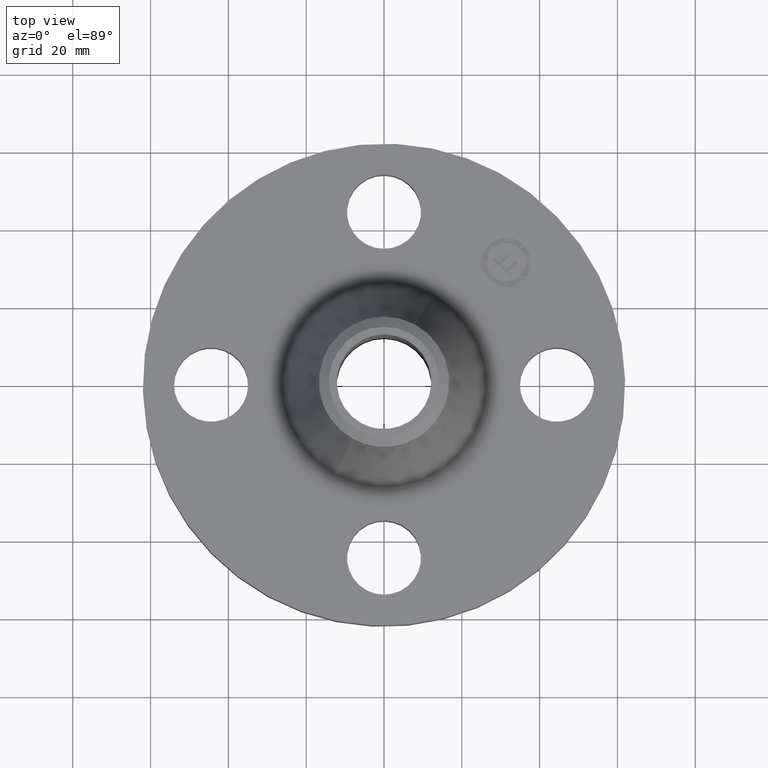
[diagram: clean part render]
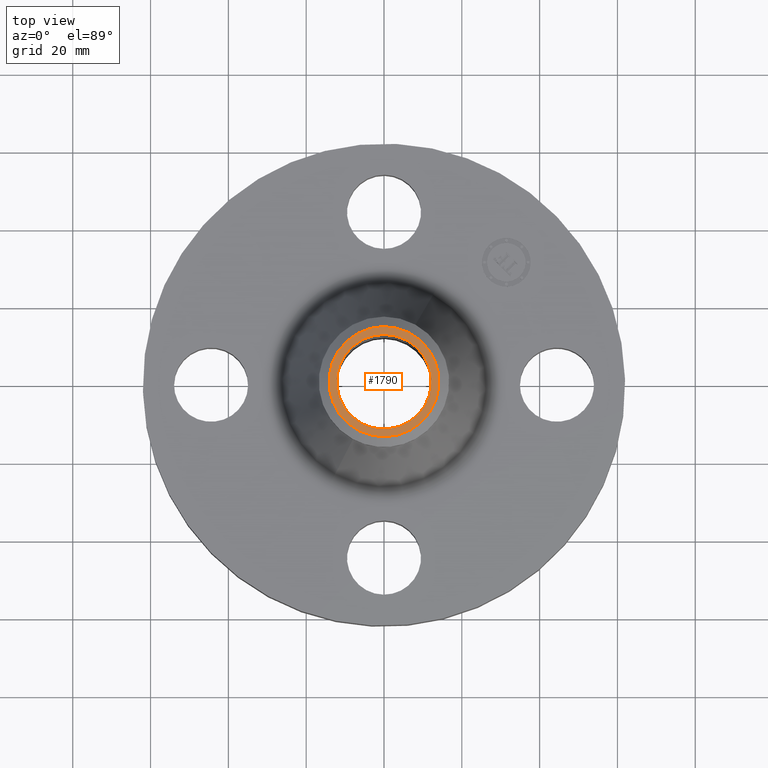
[diagram: same view with one face highlighted and labeled with its STEP entity id]
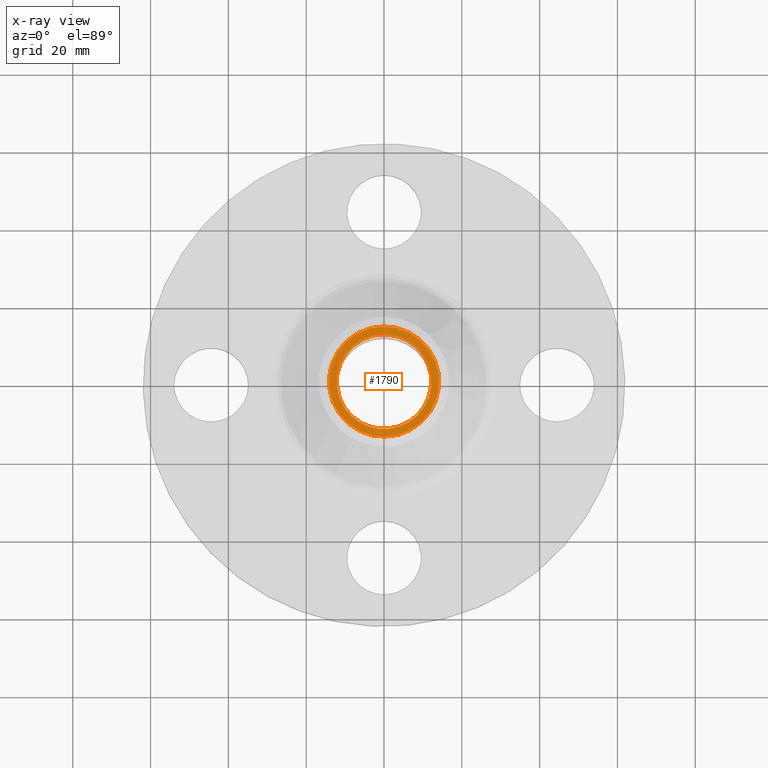
[diagram: x-ray of the same camera — body ghosted, the highlighted face saturated]
A machine part, top view. The second image highlights one B-rep face of the part: STEP entity #1790.
The next image is the same camera in x-ray: the body ghosted, the highlighted face saturated — about 0% of this face is hidden behind the body in this view.
In plain terms, the highlighted planar face has unit normal (0, 0, -1).
Its self-contained STEP definition (entity closure, byte-faithful):
#1104=AXIS2_PLACEMENT_3D('Circle Axis2P3D',#1102,#1103,$) ;
#1766=AXIS2_PLACEMENT_3D('Plane Axis2P3D',#1763,#1764,#1765) ;
#1770=AXIS2_PLACEMENT_3D('Circle Axis2P3D',#1768,#1769,$) ;
#1779=AXIS2_PLACEMENT_3D('Circle Axis2P3D',#1777,#1778,$) ;
#1053=CARTESIAN_POINT('Control Point',(0.229405120223,0.419923255866,2.44000000001)) ;
#1054=CARTESIAN_POINT('Control Point',(0.295366511008,0.383888383847,2.44000000001)) ;
#1055=CARTESIAN_POINT('Control Point',(0.354252471218,0.334902023033,2.44000000001)) ;
#1056=CARTESIAN_POINT('Control Point',(0.402660838744,0.274806163208,2.44000000001)) ;
#1057=CARTESIAN_POINT('Control Point',(0.473305668442,0.138871666265,2.44000000001)) ;
#1058=CARTESIAN_POINT('Control Point',(0.48730581617,-0.0136828331305,2.44000000002)) ;
#1059=CARTESIAN_POINT('Control Point',(0.479041511111,-0.0904069080775,2.44000000002)) ;
#1060=CARTESIAN_POINT('Control Point',(0.432874744661,-0.236480550799,2.44000000002)) ;
#1061=CARTESIAN_POINT('Control Point',(0.334902023033,-0.354252471218,2.44000000002)) ;
#1062=CARTESIAN_POINT('Control Point',(0.274806163209,-0.402660838744,2.44000000002)) ;
#1063=CARTESIAN_POINT('Control Point',(0.138871666265,-0.473305668442,2.44000000002)) ;
#1064=CARTESIAN_POINT('Control Point',(-0.0136828331304,-0.48730581617,2.44000000002)) ;
#1065=CARTESIAN_POINT('Control Point',(-0.0904069080775,-0.479041511111,2.44000000002)) ;
#1066=CARTESIAN_POINT('Control Point',(-0.163443729438,-0.455958127886,2.44000000002)) ;
#1067=CARTESIAN_POINT('Control Point',(-0.229405120223,-0.419923255866,2.44000000003)) ;
#1068=CARTESIAN_POINT('Vertex',(0.229405120223,0.419923255866,2.44000000003)) ;
#1070=CARTESIAN_POINT('Vertex',(-0.229405120206,-0.419923255865,2.44000000001)) ;
#1102=CARTESIAN_POINT('Axis2P3D Location',(0.,0.,2.44000000003)) ;
#1763=CARTESIAN_POINT('Axis2P3D Location',(0.,0.660000000003,2.44000000001)) ;
#1768=CARTESIAN_POINT('Axis2P3D Location',(-5.24514814784E-017,-1.4013217533E-011,2.44000000001)) ;
#1772=CARTESIAN_POINT('Vertex',(0.267155162633,-0.489024244991,2.44000000001)) ;
#1774=CARTESIAN_POINT('Vertex',(-0.267155162633,0.489024244991,2.44000000001)) ;
#1777=CARTESIAN_POINT('Axis2P3D Location',(3.08536048853E-011,2.84245068427E-012,2.44000000001)) ;
#1103=DIRECTION('Axis2P3D Direction',(-0.,0.,-0.0393700787402)) ;
#1764=DIRECTION('Axis2P3D Direction',(0.,0.,-0.0393700787402)) ;
#1765=DIRECTION('Axis2P3D XDirection',(0.0393700787402,0.,0.)) ;
#1769=DIRECTION('Axis2P3D Direction',(0.,0.,-0.0393700787402)) ;
#1778=DIRECTION('Axis2P3D Direction',(0.,0.,-0.0393700787402)) ;
#1783=ORIENTED_EDGE('',*,*,#1776,.T.) ;
#1784=ORIENTED_EDGE('',*,*,#1781,.T.) ;
#1787=ORIENTED_EDGE('',*,*,#1106,.T.) ;
#1788=ORIENTED_EDGE('',*,*,#1072,.T.) ;
#1789=FACE_BOUND('',#1786,.T.) ;
#1790=ADVANCED_FACE('PartBody',(#1785,#1789),#1767,.F.) ;
#1052=B_SPLINE_CURVE_WITH_KNOTS('',5,(#1053,#1054,#1055,#1056,#1057,#1058,#1059,#1060,#1061,#1062,#1063,#1064,#1065,#1066,#1067),.UNSPECIFIED.,.F.,.U.,(6,3,3,3,6),(-19.0913014763,-9.54565073816,-1.7763568394E-015,9.54565073816,19.0913014763),.UNSPECIFIED.) ;
#1105=CIRCLE('generated circle',#1104,0.478500000002) ;
#1771=CIRCLE('generated circle',#1770,0.557240157504) ;
#1780=CIRCLE('generated circle',#1779,0.557240157504) ;
#1072=EDGE_CURVE('',#1069,#1071,#1052,.T.) ;
#1106=EDGE_CURVE('',#1071,#1069,#1105,.T.) ;
#1776=EDGE_CURVE('',#1773,#1775,#1771,.F.) ;
#1781=EDGE_CURVE('',#1775,#1773,#1780,.F.) ;
#1782=EDGE_LOOP('',(#1783,#1784)) ;
#1786=EDGE_LOOP('',(#1787,#1788)) ;
#1785=FACE_OUTER_BOUND('',#1782,.T.) ;
#1767=PLANE('',#1766) ;
#1069=VERTEX_POINT('',#1068) ;
#1071=VERTEX_POINT('',#1070) ;
#1773=VERTEX_POINT('',#1772) ;
#1775=VERTEX_POINT('',#1774) ;